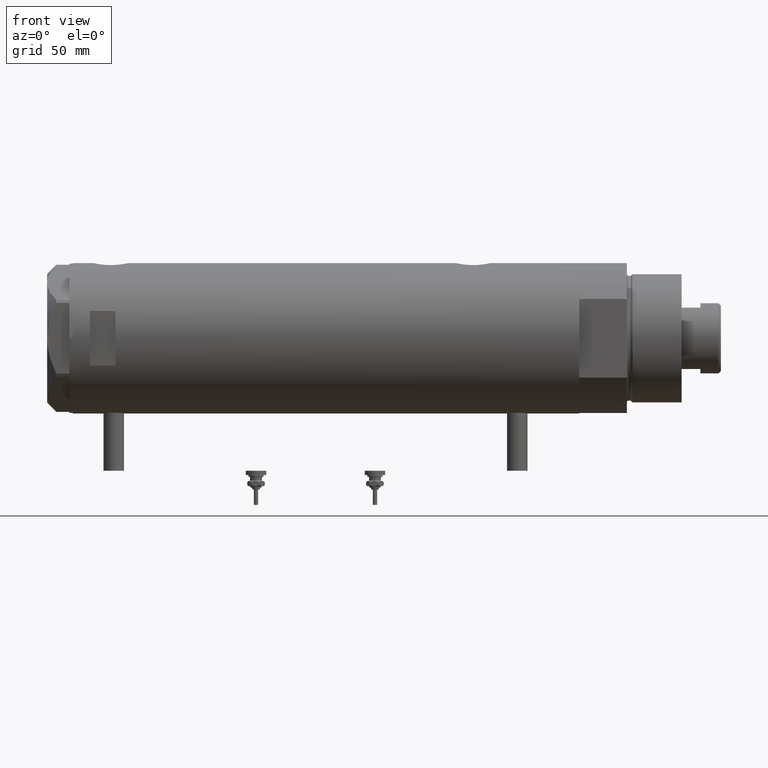
[diagram: clean part render]
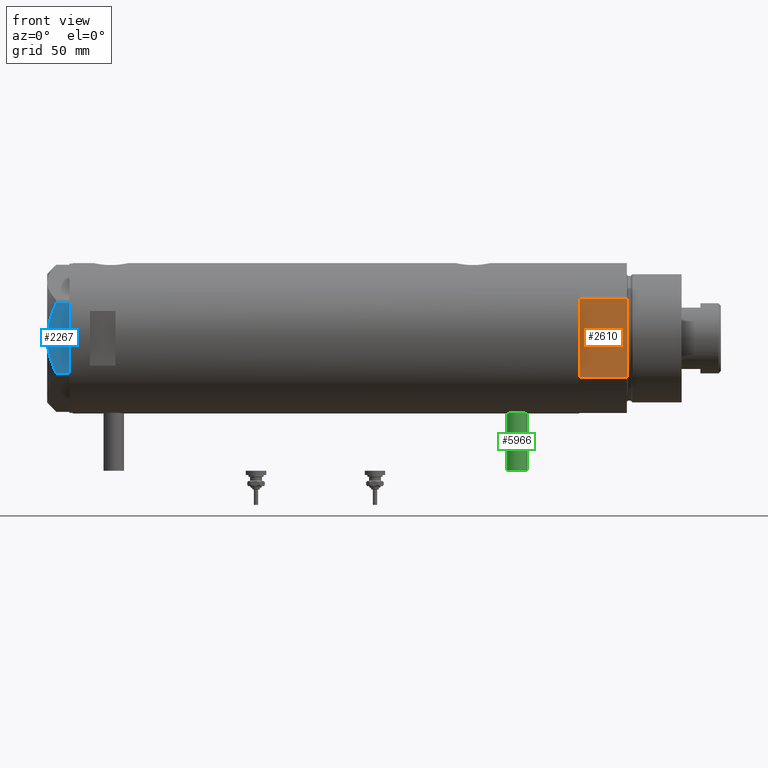
[diagram: same view with three faces highlighted in distinct colors, each labeled with its STEP entity id]
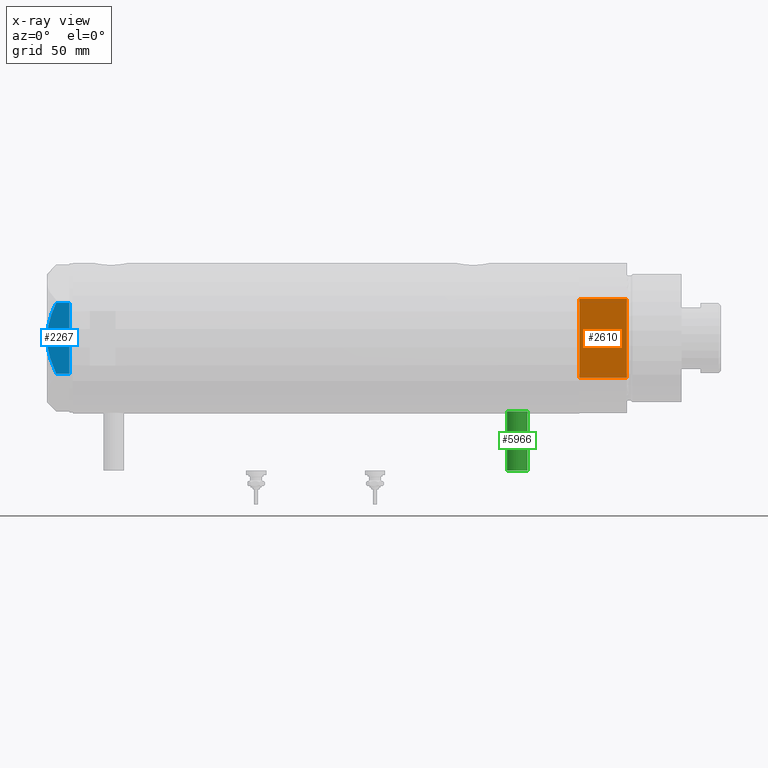
[diagram: x-ray of the same camera — body ghosted, the three highlighted faces saturated]
A machine part, front view with three faces highlighted in distinct colors.
The next image is the same camera in x-ray (body ghosted, the three faces saturated) — at least one of them is partly hidden behind the body in this view.
Their STEP definitions:

[orange] entity #2610 — the highlighted planar face has unit normal (-0, 1, 0).
#44 = VERTEX_POINT ( 'NONE', #3418 ) ;
#98 = DIRECTION ( 'NONE',  ( -0.000000000000000000, -0.000000000000000000, 1.000000000000000000 ) ) ;
#154 = LINE ( 'NONE', #5261, #1479 ) ;
#202 = CARTESIAN_POINT ( 'NONE',  ( -23.01629857296780557, -37.50000000000000000, 0.000000000000000000 ) ) ;
#444 = VERTEX_POINT ( 'NONE', #4255 ) ;
#641 = VECTOR ( 'NONE', #728, 1000.000000000000000 ) ;
#708 = VECTOR ( 'NONE', #98, 1000.000000000000000 ) ;
#728 = DIRECTION ( 'NONE',  ( -1.000000000000000000, -0.000000000000000000, -0.000000000000000000 ) ) ;
#793 = VECTOR ( 'NONE', #4991, 1000.000000000000000 ) ;
#794 = LINE ( 'NONE', #5450, #2949 ) ;
#822 = EDGE_CURVE ( 'NONE', #444, #44, #3753, .T. ) ;
#882 = EDGE_LOOP ( 'NONE', ( #4456, #4452, #4164, #5644, #1312, #3528, #2417 ) ) ;
#908 = VERTEX_POINT ( 'NONE', #1920 ) ;
#943 = DIRECTION ( 'NONE',  ( -0.000000000000000000, 1.000000000000000000, 0.000000000000000000 ) ) ;
#1280 = EDGE_CURVE ( 'NONE', #4425, #1885, #4965, .T. ) ;
#1312 = ORIENTED_EDGE ( 'NONE', *, *, #2754, .F. ) ;
#1334 = DIRECTION ( 'NONE',  ( 0.000000000000000000, -0.000000000000000000, 1.000000000000000000 ) ) ;
#1479 = VECTOR ( 'NONE', #5725, 1000.000000000000000 ) ;
#1536 = CARTESIAN_POINT ( 'NONE',  ( 23.01629857296780557, -37.50000000000000000, 27.89999999999999858 ) ) ;
#1885 = VERTEX_POINT ( 'NONE', #4043 ) ;
#1920 = CARTESIAN_POINT ( 'NONE',  ( 23.01629857296780557, -37.50000000000000000, 0.000000000000000000 ) ) ;
#2414 = CARTESIAN_POINT ( 'NONE',  ( -23.01629857296780557, -37.50000000000000000, 0.000000000000000000 ) ) ;
#2417 = ORIENTED_EDGE ( 'NONE', *, *, #2456, .T. ) ;
#2456 = EDGE_CURVE ( 'NONE', #908, #4425, #2583, .T. ) ;
#2583 = LINE ( 'NONE', #2703, #3608 ) ;
#2610 = ADVANCED_FACE ( 'NONE', ( #3280 ), #3777, .F. ) ;
#2703 = CARTESIAN_POINT ( 'NONE',  ( 23.01629857296780557, -37.50000000000000000, 0.000000000000000000 ) ) ;
#2754 = EDGE_CURVE ( 'NONE', #3295, #3032, #154, .T. ) ;
#2851 = CARTESIAN_POINT ( 'NONE',  ( -23.01629857296780557, -37.50000000000000000, 0.000000000000000000 ) ) ;
#2949 = VECTOR ( 'NONE', #5474, 1000.000000000000000 ) ;
#3027 = CARTESIAN_POINT ( 'NONE',  ( -23.01629857296780557, -37.50000000000000000, 27.89999999999999858 ) ) ;
#3032 = VERTEX_POINT ( 'NONE', #5533 ) ;
#3119 = CARTESIAN_POINT ( 'NONE',  ( 13.91941090707505957, -37.50000000000000000, 0.000000000000000000 ) ) ;
#3280 = FACE_OUTER_BOUND ( 'NONE', #882, .T. ) ;
#3295 = VERTEX_POINT ( 'NONE', #3119 ) ;
#3418 = CARTESIAN_POINT ( 'NONE',  ( -23.01629857296780557, -37.50000000000000000, 27.89999999999999858 ) ) ;
#3528 = ORIENTED_EDGE ( 'NONE', *, *, #4120, .F. ) ;
#3608 = VECTOR ( 'NONE', #3611, 1000.000000000000000 ) ;
#3611 = DIRECTION ( 'NONE',  ( -0.000000000000000000, -0.000000000000000000, 1.000000000000000000 ) ) ;
#3753 = LINE ( 'NONE', #2414, #708 ) ;
#3777 = PLANE ( 'NONE',  #5199 ) ;
#4043 = CARTESIAN_POINT ( 'NONE',  ( 0.000000000000000000, -37.50000000000000000, 27.89999999999999858 ) ) ;
#4120 = EDGE_CURVE ( 'NONE', #908, #3295, #794, .T. ) ;
#4164 = ORIENTED_EDGE ( 'NONE', *, *, #822, .F. ) ;
#4255 = CARTESIAN_POINT ( 'NONE',  ( -23.01629857296780557, -37.50000000000000000, 0.000000000000000000 ) ) ;
#4310 = VECTOR ( 'NONE', #5764, 1000.000000000000000 ) ;
#4425 = VERTEX_POINT ( 'NONE', #1536 ) ;
#4452 = ORIENTED_EDGE ( 'NONE', *, *, #4869, .T. ) ;
#4456 = ORIENTED_EDGE ( 'NONE', *, *, #1280, .T. ) ;
#4833 = EDGE_CURVE ( 'NONE', #3032, #444, #5800, .T. ) ;
#4869 = EDGE_CURVE ( 'NONE', #1885, #44, #5373, .T. ) ;
#4902 = CARTESIAN_POINT ( 'NONE',  ( -23.01629857296780557, -37.50000000000000000, 27.89999999999999858 ) ) ;
#4965 = LINE ( 'NONE', #4902, #793 ) ;
#4991 = DIRECTION ( 'NONE',  ( -1.000000000000000000, -0.000000000000000000, -0.000000000000000000 ) ) ;
#5199 = AXIS2_PLACEMENT_3D ( 'NONE', #2851, #943, #1334 ) ;
#5261 = CARTESIAN_POINT ( 'NONE',  ( -23.01629857296780557, -37.50000000000000000, 0.000000000000000000 ) ) ;
#5373 = LINE ( 'NONE', #3027, #641 ) ;
#5450 = CARTESIAN_POINT ( 'NONE',  ( -23.01629857296780557, -37.50000000000000000, 0.000000000000000000 ) ) ;
#5474 = DIRECTION ( 'NONE',  ( -1.000000000000000000, -0.000000000000000000, -0.000000000000000000 ) ) ;
#5533 = CARTESIAN_POINT ( 'NONE',  ( -13.91941090707505957, -37.50000000000000000, 0.000000000000000000 ) ) ;
#5644 = ORIENTED_EDGE ( 'NONE', *, *, #4833, .F. ) ;
#5725 = DIRECTION ( 'NONE',  ( -1.000000000000000000, -0.000000000000000000, -0.000000000000000000 ) ) ;
#5764 = DIRECTION ( 'NONE',  ( -1.000000000000000000, -0.000000000000000000, -0.000000000000000000 ) ) ;
#5800 = LINE ( 'NONE', #202, #4310 ) ;

[blue] entity #2267 — the highlighted planar face has unit normal (-0, 1, 0).
#259 = CARTESIAN_POINT ( 'NONE',  ( -37.74999999999998579, -3.611424898442238351, 12.83826937481876662 ) ) ;
#310 = ORIENTED_EDGE ( 'NONE', *, *, #4400, .T. ) ;
#370 = CARTESIAN_POINT ( 'NONE',  ( -37.75000000000000000, -19.86857906850810096, 8.096480699986589258 ) ) ;
#471 = DIRECTION ( 'NONE',  ( 0.000000000000000000, 0.000000000000000000, 1.000000000000000000 ) ) ;
#523 = CARTESIAN_POINT ( 'NONE',  ( -37.74999999999999289, -20.67497266190838090, 7.709124142616975206 ) ) ;
#649 = CARTESIAN_POINT ( 'NONE',  ( -37.75000000000000711, 21.79497266190837124, 0.000000000000000000 ) ) ;
#725 = CARTESIAN_POINT ( 'NONE',  ( -37.74999999999999289, -7.161343005612803125, 12.36677985830371895 ) ) ;
#801 = CARTESIAN_POINT ( 'NONE',  ( -37.74999999999999289, 11.46926194450821690, 11.30493988086503521 ) ) ;
#932 = VERTEX_POINT ( 'NONE', #1829 ) ;
#936 = CARTESIAN_POINT ( 'NONE',  ( -37.75000000000000000, -1.201851678989727067E-14, 13.00000000000000000 ) ) ;
#1044 = PLANE ( 'NONE',  #5692 ) ;
#1539 = CARTESIAN_POINT ( 'NONE',  ( -37.75000000000000711, 20.67497266190838090, 7.709124142616995634 ) ) ;
#1696 = CARTESIAN_POINT ( 'NONE',  ( -37.75000000000000000, 14.89874562435961103, 10.17375260246623903 ) ) ;
#1720 = ORIENTED_EDGE ( 'NONE', *, *, #5321, .F. ) ;
#1797 = ORIENTED_EDGE ( 'NONE', *, *, #1824, .F. ) ;
#1824 = EDGE_CURVE ( 'NONE', #5232, #4791, #3090, .T. ) ;
#1829 = CARTESIAN_POINT ( 'NONE',  ( -37.75000000000000711, 20.67497266190837024, 0.000000000000000000 ) ) ;
#2127 = CARTESIAN_POINT ( 'NONE',  ( -37.75000000000000000, -1.201851678989727067E-14, 13.00000000000000000 ) ) ;
#2159 = CARTESIAN_POINT ( 'NONE',  ( -37.74999999999999289, -14.04742653794399132, 10.50092616350622698 ) ) ;
#2255 = CARTESIAN_POINT ( 'NONE',  ( -37.75000000000000711, 3.615248338761639868, 13.00000000000000355 ) ) ;
#2267 = ADVANCED_FACE ( 'NONE', ( #2271 ), #1044, .F. ) ;
#2271 = FACE_OUTER_BOUND ( 'NONE', #3497, .T. ) ;
#2311 = CARTESIAN_POINT ( 'NONE',  ( -37.75000000000000711, 20.67497266190837024, 13.00000000000000000 ) ) ;
#2453 = VECTOR ( 'NONE', #471, 1000.000000000000000 ) ;
#2526 = CARTESIAN_POINT ( 'NONE',  ( -37.75000000000000000, -0.9015134592203577490, 13.00000000000000178 ) ) ;
#2534 = LINE ( 'NONE', #649, #4196 ) ;
#2555 = B_SPLINE_CURVE_WITH_KNOTS ( 'NONE', 3,
 ( #3252, #4001, #5902, #1696, #5457, #2749, #801, #2643, #2255, #4112 ),
 .UNSPECIFIED., .F., .F.,
 ( 4, 2, 2, 2, 4 ),
 ( 0.05601050456479945983, 0.06138217239161374017, 0.06406800630502088034, 0.06675384021842802051, 0.07749717587205659508 ),
 .UNSPECIFIED. ) ;
#2559 = CARTESIAN_POINT ( 'NONE',  ( -37.74999999999999289, -20.67497266190838090, 7.709124142616975206 ) ) ;
#2628 = CARTESIAN_POINT ( 'NONE',  ( -37.74999999999999289, -20.67497266190837379, 0.000000000000000000 ) ) ;
#2643 = CARTESIAN_POINT ( 'NONE',  ( -37.75000000000000000, 7.143641079404827288, 12.47474846747316946 ) ) ;
#2749 = CARTESIAN_POINT ( 'NONE',  ( -37.74999999999999289, 12.33018559404073855, 11.04557586999680474 ) ) ;
#2888 = CARTESIAN_POINT ( 'NONE',  ( -37.75000000000000711, 21.79497266190837124, 13.00000000000000000 ) ) ;
#3055 = CARTESIAN_POINT ( 'NONE',  ( -37.75000000000000000, -19.05362936076134517, 8.470554105526115762 ) ) ;
#3090 = B_SPLINE_CURVE_WITH_KNOTS ( 'NONE', 3,
 ( #2127, #2526, #3113, #259, #3501, #725, #5491, #5847, #2159, #3950, #3920, #3055, #370, #2559 ),
 .UNSPECIFIED., .F., .F.,
 ( 4, 2, 2, 2, 2, 2, 4 ),
 ( 0.07749717587205659508, 0.08017617902235898986, 0.08285518217266138463, 0.08821318847326617418, 0.09357119477387096373, 0.09625019792417334463, 0.09892920107447573941 ),
 .UNSPECIFIED. ) ;
#3113 = CARTESIAN_POINT ( 'NONE',  ( -37.75000000000000000, -1.811728074765795338, 12.96720910498919999 ) ) ;
#3141 = ORIENTED_EDGE ( 'NONE', *, *, #4946, .T. ) ;
#3252 = CARTESIAN_POINT ( 'NONE',  ( -37.75000000000000711, 20.67497266190838090, 7.709124142616995634 ) ) ;
#3254 = ORIENTED_EDGE ( 'NONE', *, *, #4357, .T. ) ;
#3322 = DIRECTION ( 'NONE',  ( 1.000000000000000000, 3.183713056926429451E-16, -0.000000000000000000 ) ) ;
#3365 = DIRECTION ( 'NONE',  ( 0.000000000000000000, 0.000000000000000000, -1.000000000000000000 ) ) ;
#3497 = EDGE_LOOP ( 'NONE', ( #1720, #3141, #310, #3254, #1797 ) ) ;
#3501 = CARTESIAN_POINT ( 'NONE',  ( -37.75000000000000000, -4.503994958793054337, 12.74237531377022670 ) ) ;
#3805 = LINE ( 'NONE', #2311, #3814 ) ;
#3814 = VECTOR ( 'NONE', #3365, 1000.000000000000000 ) ;
#3920 = CARTESIAN_POINT ( 'NONE',  ( -37.75000000000000000, -17.40390235304479205, 9.187919079516763787 ) ) ;
#3950 = CARTESIAN_POINT ( 'NONE',  ( -37.74999999999999289, -16.56731140591524110, 9.531835068628826235 ) ) ;
#4001 = CARTESIAN_POINT ( 'NONE',  ( -37.75000000000001421, 19.06473524669327446, 8.482612457517163307 ) ) ;
#4023 = VERTEX_POINT ( 'NONE', #1539 ) ;
#4112 = CARTESIAN_POINT ( 'NONE',  ( -37.75000000000000000, -1.201851678989727067E-14, 13.00000000000000000 ) ) ;
#4196 = VECTOR ( 'NONE', #5224, 1000.000000000000000 ) ;
#4236 = CARTESIAN_POINT ( 'NONE',  ( -37.74999999999999289, -20.67497266190837379, 13.00000000000000000 ) ) ;
#4357 = EDGE_CURVE ( 'NONE', #5042, #4791, #4618, .T. ) ;
#4400 = EDGE_CURVE ( 'NONE', #932, #5042, #2534, .T. ) ;
#4618 = LINE ( 'NONE', #4236, #2453 ) ;
#4666 = DIRECTION ( 'NONE',  ( -3.183713056926429451E-16, 1.000000000000000000, 0.000000000000000000 ) ) ;
#4791 = VERTEX_POINT ( 'NONE', #523 ) ;
#4946 = EDGE_CURVE ( 'NONE', #4023, #932, #3805, .T. ) ;
#5042 = VERTEX_POINT ( 'NONE', #2628 ) ;
#5224 = DIRECTION ( 'NONE',  ( 3.183713056926429451E-16, -1.000000000000000000, 0.000000000000000000 ) ) ;
#5232 = VERTEX_POINT ( 'NONE', #936 ) ;
#5321 = EDGE_CURVE ( 'NONE', #4023, #5232, #2555, .T. ) ;
#5457 = CARTESIAN_POINT ( 'NONE',  ( -37.74999999999999289, 14.04433099034388199, 10.48027127384610857 ) ) ;
#5491 = CARTESIAN_POINT ( 'NONE',  ( -37.75000000000000000, -8.905753572404320195, 11.99914237172014886 ) ) ;
#5692 = AXIS2_PLACEMENT_3D ( 'NONE', #2888, #3322, #4666 ) ;
#5847 = CARTESIAN_POINT ( 'NONE',  ( -37.74999999999999289, -12.34877760086739862, 11.06613894200179260 ) ) ;
#5902 = CARTESIAN_POINT ( 'NONE',  ( -37.75000000000000000, 17.42329546264825524, 9.202188366597436442 ) ) ;

[green] entity #5966 — the highlighted cylindrical surface (edge-blend (fillet) strip) has radius 6 mm, axis along (0, 0, 1).
#23 = ORIENTED_EDGE ( 'NONE', *, *, #230, .T. ) ;
#200 = CARTESIAN_POINT ( 'NONE',  ( -42.79999999999999716, 0.000000000000000000, -117.9000000000000057 ) ) ;
#230 = EDGE_CURVE ( 'NONE', #2094, #1138, #2632, .T. ) ;
#322 = CARTESIAN_POINT ( 'NONE',  ( -77.50000000000000000, 7.347880794884119736E-16, -105.8999999999999915 ) ) ;
#489 = CARTESIAN_POINT ( 'NONE',  ( -42.79999999999999716, 7.347880794884119736E-16, -105.8999999999999915 ) ) ;
#638 = VECTOR ( 'NONE', #3099, 1000.000000000000000 ) ;
#746 = AXIS2_PLACEMENT_3D ( 'NONE', #1744, #3601, #1800 ) ;
#1019 = VERTEX_POINT ( 'NONE', #1095 ) ;
#1095 = CARTESIAN_POINT ( 'NONE',  ( -77.50000000000000000, 0.000000000000000000, -117.9000000000000057 ) ) ;
#1138 = VERTEX_POINT ( 'NONE', #489 ) ;
#1227 = EDGE_LOOP ( 'NONE', ( #3040, #5913, #5945, #23 ) ) ;
#1478 = CARTESIAN_POINT ( 'NONE',  ( -77.50000000000000000, 0.000000000000000000, -111.9000000000000057 ) ) ;
#1744 = CARTESIAN_POINT ( 'NONE',  ( -77.50000000000000000, 0.000000000000000000, -111.9000000000000057 ) ) ;
#1800 = DIRECTION ( 'NONE',  ( 0.000000000000000000, 0.000000000000000000, -1.000000000000000000 ) ) ;
#2071 = DIRECTION ( 'NONE',  ( 1.000000000000000000, -0.000000000000000000, -0.000000000000000000 ) ) ;
#2094 = VERTEX_POINT ( 'NONE', #200 ) ;
#2164 = CARTESIAN_POINT ( 'NONE',  ( -42.79999999999999716, 0.000000000000000000, -111.9000000000000057 ) ) ;
#2632 = CIRCLE ( 'NONE', #5778, 6.000000000000005329 ) ;
#2659 = LINE ( 'NONE', #3537, #3893 ) ;
#2697 = CARTESIAN_POINT ( 'NONE',  ( -77.50000000000000000, 7.347880794884122694E-16, -105.8999999999999915 ) ) ;
#2874 = DIRECTION ( 'NONE',  ( 0.000000000000000000, 0.000000000000000000, 1.000000000000000000 ) ) ;
#2952 = CIRCLE ( 'NONE', #5217, 6.000000000000005329 ) ;
#3026 = DIRECTION ( 'NONE',  ( -1.000000000000000000, 0.000000000000000000, 0.000000000000000000 ) ) ;
#3040 = ORIENTED_EDGE ( 'NONE', *, *, #4063, .F. ) ;
#3099 = DIRECTION ( 'NONE',  ( 1.000000000000000000, -0.000000000000000000, -0.000000000000000000 ) ) ;
#3179 = LINE ( 'NONE', #2697, #638 ) ;
#3263 = EDGE_CURVE ( 'NONE', #1019, #2094, #2659, .T. ) ;
#3336 = DIRECTION ( 'NONE',  ( -1.000000000000000000, 0.000000000000000000, 0.000000000000000000 ) ) ;
#3537 = CARTESIAN_POINT ( 'NONE',  ( -77.50000000000000000, 0.000000000000000000, -117.9000000000000057 ) ) ;
#3601 = DIRECTION ( 'NONE',  ( 1.000000000000000000, -0.000000000000000000, -0.000000000000000000 ) ) ;
#3893 = VECTOR ( 'NONE', #2071, 1000.000000000000000 ) ;
#3925 = DIRECTION ( 'NONE',  ( 0.000000000000000000, 0.000000000000000000, 1.000000000000000000 ) ) ;
#4063 = EDGE_CURVE ( 'NONE', #4551, #1138, #3179, .T. ) ;
#4551 = VERTEX_POINT ( 'NONE', #322 ) ;
#4903 = EDGE_CURVE ( 'NONE', #1019, #4551, #2952, .T. ) ;
#4975 = CYLINDRICAL_SURFACE ( 'NONE', #746, 6.000000000000005329 ) ;
#5217 = AXIS2_PLACEMENT_3D ( 'NONE', #1478, #3336, #2874 ) ;
#5531 = FACE_OUTER_BOUND ( 'NONE', #1227, .T. ) ;
#5778 = AXIS2_PLACEMENT_3D ( 'NONE', #2164, #3026, #3925 ) ;
#5913 = ORIENTED_EDGE ( 'NONE', *, *, #4903, .F. ) ;
#5945 = ORIENTED_EDGE ( 'NONE', *, *, #3263, .T. ) ;
#5966 = ADVANCED_FACE ( 'NONE', ( #5531 ), #4975, .T. ) ;